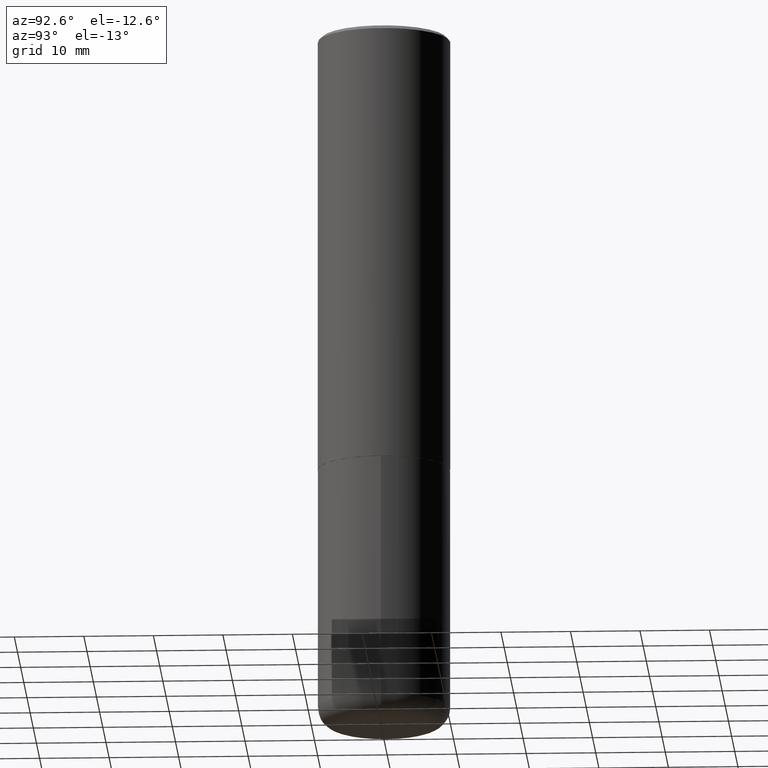
[diagram: clean part render]
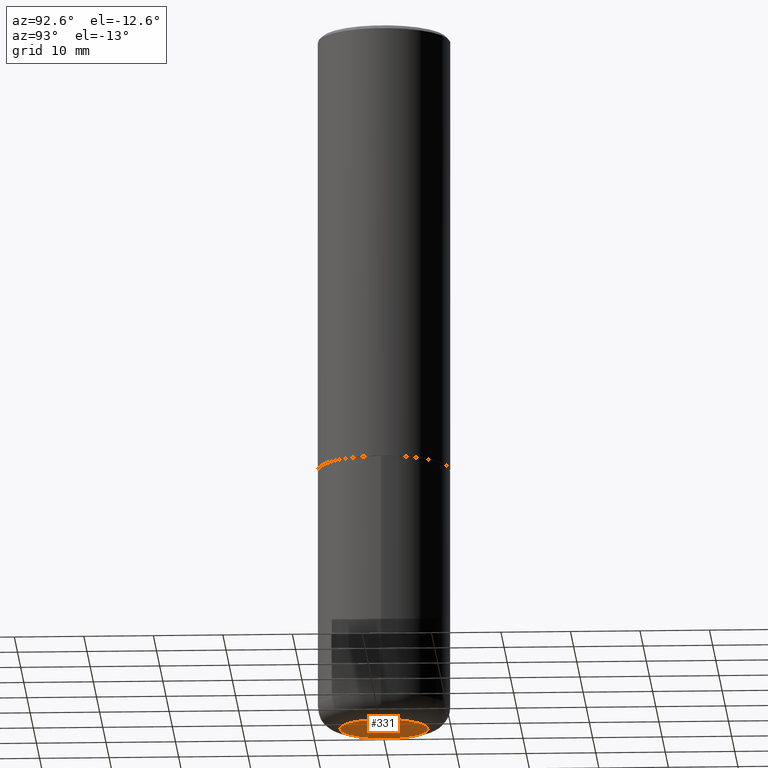
[diagram: same view with one face highlighted and labeled with its STEP entity id]
A machine part, auxiliary view. The second image highlights one B-rep face of the part: STEP entity #331.
In plain terms, the highlighted planar face has unit normal (0, -0, -1).
Its self-contained STEP definition (entity closure, byte-faithful):
#10 = CIRCLE ( 'NONE', #314, 0.2500000000000000555 ) ;
#21 = DIRECTION ( 'NONE',  ( 1.000000000000000000, -6.982962677686269077E-15, 0.000000000000000000 ) ) ;
#66 = VERTEX_POINT ( 'NONE', #113 ) ;
#82 = CARTESIAN_POINT ( 'NONE',  ( 9.781875224740546387E-29, -1.396592535537258233E-14, -4.000000000000000000 ) ) ;
#110 = DIRECTION ( 'NONE',  ( 2.438088387897960049E-29, -3.491481338843145188E-15, -1.000000000000000000 ) ) ;
#113 = CARTESIAN_POINT ( 'NONE',  ( 0.2500000000000000555, -1.571166602479415059E-14, -4.000000000000000000 ) ) ;
#134 = CIRCLE ( 'NONE', #295, 0.2500000000000000555 ) ;
#160 = FACE_OUTER_BOUND ( 'NONE', #297, .T. ) ;
#193 = CARTESIAN_POINT ( 'NONE',  ( -0.2500000000000000555, -1.152726172244457105E-14, -4.000000000000000000 ) ) ;
#206 = ORIENTED_EDGE ( 'NONE', *, *, #247, .F. ) ;
#227 = EDGE_CURVE ( 'NONE', #66, #264, #134, .T. ) ;
#247 = EDGE_CURVE ( 'NONE', #264, #66, #10, .T. ) ;
#264 = VERTEX_POINT ( 'NONE', #193 ) ;
#271 = DIRECTION ( 'NONE',  ( -2.445468806185136597E-29, 3.491481338843145583E-15, 1.000000000000000000 ) ) ;
#290 = PLANE ( 'NONE',  #294 ) ;
#294 = AXIS2_PLACEMENT_3D ( 'NONE', #391, #110, #343 ) ;
#295 = AXIS2_PLACEMENT_3D ( 'NONE', #82, #271, #21 ) ;
#297 = EDGE_LOOP ( 'NONE', ( #352, #206 ) ) ;
#304 = CARTESIAN_POINT ( 'NONE',  ( 9.781875224740546387E-29, -1.396592535537258233E-14, -4.000000000000000000 ) ) ;
#306 = DIRECTION ( 'NONE',  ( 1.000000000000000000, -6.982962677686269077E-15, 0.000000000000000000 ) ) ;
#314 = AXIS2_PLACEMENT_3D ( 'NONE', #304, #342, #306 ) ;
#331 = ADVANCED_FACE ( 'NONE', ( #160 ), #290, .T. ) ;
#342 = DIRECTION ( 'NONE',  ( -2.445468806185136597E-29, 3.491481338843145583E-15, 1.000000000000000000 ) ) ;
#343 = DIRECTION ( 'NONE',  ( -1.000000000000000000, 6.982962677686265922E-15, -4.876176775795935793E-29 ) ) ;
#352 = ORIENTED_EDGE ( 'NONE', *, *, #227, .F. ) ;
#391 = CARTESIAN_POINT ( 'NONE',  ( 9.781875224740546387E-29, -1.396592535537258233E-14, -4.000000000000000000 ) ) ;